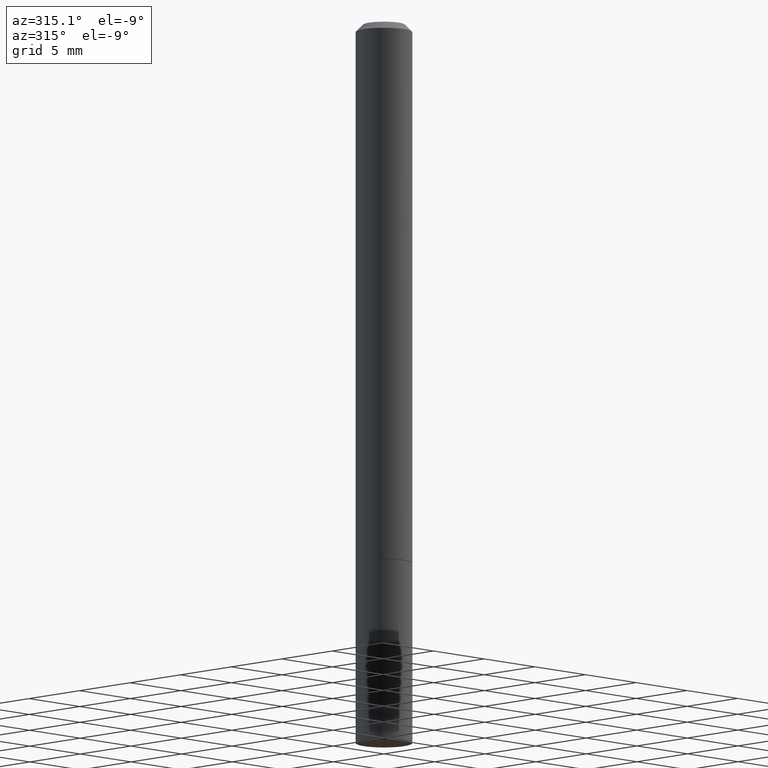
[diagram: clean part render]
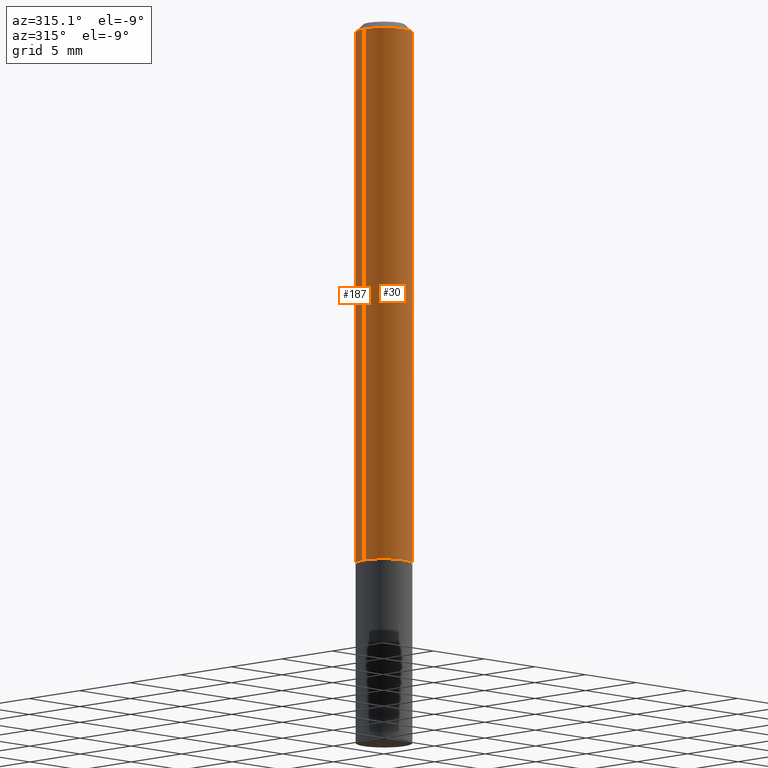
[diagram: same view with one multi-face feature highlighted, each face labeled with its STEP entity id]
A machine part, auxiliary view. The highlighted faces form ONE feature: a constant-radius fillet chain: 2 tangent blend faces with common blend radius 1.9837 mm. The faces share edges in the B-rep.
Their STEP definitions:
[1] entity #30 (Cylinder):
#11 = VERTEX_POINT ( 'NONE', #309 ) ;
#24 = VECTOR ( 'NONE', #341, 39.37007874015748143 ) ;
#30 = ADVANCED_FACE ( 'NONE', ( #303 ), #207, .T. ) ;
#45 = ORIENTED_EDGE ( 'NONE', *, *, #118, .T. ) ;
#47 = AXIS2_PLACEMENT_3D ( 'NONE', #61, #159, #275 ) ;
#57 = EDGE_CURVE ( 'NONE', #285, #11, #277, .T. ) ;
#61 = CARTESIAN_POINT ( 'NONE',  ( 3.665757740471518732E-29, -5.233730526925875170E-15, -1.498999999999999666 ) ) ;
#66 = CARTESIAN_POINT ( 'NONE',  ( 0.07809999999999991949, -5.453693851272968448E-16, 3.808294061896621499E-30 ) ) ;
#67 = CIRCLE ( 'NONE', #139, 0.07809999999999980846 ) ;
#78 = EDGE_CURVE ( 'NONE', #368, #11, #67, .T. ) ;
#83 = CARTESIAN_POINT ( 'NONE',  ( -0.07809999999999980846, 4.755397583504331521E-16, -0.02000000000000001776 ) ) ;
#96 = LINE ( 'NONE', #193, #174 ) ;
#97 = DIRECTION ( 'NONE',  ( -2.445468806185136597E-29, 3.491481338843145583E-15, 1.000000000000000000 ) ) ;
#111 = EDGE_CURVE ( 'NONE', #378, #368, #96, .T. ) ;
#117 = DIRECTION ( 'NONE',  ( -2.445468806185136597E-29, 3.491481338843145583E-15, 1.000000000000000000 ) ) ;
#118 = EDGE_CURVE ( 'NONE', #378, #285, #220, .T. ) ;
#123 = DIRECTION ( 'NONE',  ( 1.000000000000000000, -6.982962677686267499E-15, 0.000000000000000000 ) ) ;
#139 = AXIS2_PLACEMENT_3D ( 'NONE', #363, #97, #123 ) ;
#144 = EDGE_LOOP ( 'NONE', ( #261, #45, #371, #322 ) ) ;
#154 = DIRECTION ( 'NONE',  ( 1.000000000000000000, -6.982962677686266711E-15, 4.876176775795935232E-29 ) ) ;
#159 = DIRECTION ( 'NONE',  ( -2.445468806185136597E-29, 3.491481338843145583E-15, 1.000000000000000000 ) ) ;
#174 = VECTOR ( 'NONE', #213, 39.37007874015748143 ) ;
#193 = CARTESIAN_POINT ( 'NONE',  ( -0.07809999999999991949, 5.549338766286376731E-16, -3.841688305489077071E-30 ) ) ;
#207 = CYLINDRICAL_SURFACE ( 'NONE', #247, 0.07809999999999991949 ) ;
#209 = CARTESIAN_POINT ( 'NONE',  ( 0.07810000000000000275, -5.779099912053172606E-15, -1.498999999999999666 ) ) ;
#213 = DIRECTION ( 'NONE',  ( -2.445468806185136877E-29, 3.491481338843145188E-15, 1.000000000000000000 ) ) ;
#220 = CIRCLE ( 'NONE', #47, 0.07810000000000000275 ) ;
#241 = CARTESIAN_POINT ( 'NONE',  ( -0.07810000000000000275, -2.096846200222727419E-15, -1.498999999999999666 ) ) ;
#247 = AXIS2_PLACEMENT_3D ( 'NONE', #380, #117, #154 ) ;
#261 = ORIENTED_EDGE ( 'NONE', *, *, #111, .F. ) ;
#275 = DIRECTION ( 'NONE',  ( 1.000000000000000000, -6.982962677686266711E-15, 0.000000000000000000 ) ) ;
#277 = LINE ( 'NONE', #66, #24 ) ;
#285 = VERTEX_POINT ( 'NONE', #209 ) ;
#303 = FACE_OUTER_BOUND ( 'NONE', #144, .T. ) ;
#309 = CARTESIAN_POINT ( 'NONE',  ( 0.07809999999999980846, -6.056345204028183286E-16, -0.02000000000000001776 ) ) ;
#322 = ORIENTED_EDGE ( 'NONE', *, *, #78, .F. ) ;
#341 = DIRECTION ( 'NONE',  ( -2.445468806185136877E-29, 3.491481338843145188E-15, 1.000000000000000000 ) ) ;
#363 = CARTESIAN_POINT ( 'NONE',  ( 4.890937612370276662E-31, -6.982962677686296539E-17, -0.02000000000000001776 ) ) ;
#368 = VERTEX_POINT ( 'NONE', #83 ) ;
#371 = ORIENTED_EDGE ( 'NONE', *, *, #57, .T. ) ;
#378 = VERTEX_POINT ( 'NONE', #241 ) ;
#380 = CARTESIAN_POINT ( 'NONE',  ( 0.000000000000000000, 0.000000000000000000, 0.000000000000000000 ) ) ;
[2] entity #187 (Cylinder):
#5 = DIRECTION ( 'NONE',  ( 1.000000000000000000, -6.982962677686266711E-15, 0.000000000000000000 ) ) ;
#7 = CARTESIAN_POINT ( 'NONE',  ( 3.665757740471518732E-29, -5.233730526925875170E-15, -1.498999999999999666 ) ) ;
#11 = VERTEX_POINT ( 'NONE', #309 ) ;
#17 = AXIS2_PLACEMENT_3D ( 'NONE', #185, #124, #218 ) ;
#24 = VECTOR ( 'NONE', #341, 39.37007874015748143 ) ;
#29 = DIRECTION ( 'NONE',  ( -2.445468806185136597E-29, 3.491481338843145583E-15, 1.000000000000000000 ) ) ;
#57 = EDGE_CURVE ( 'NONE', #285, #11, #277, .T. ) ;
#66 = CARTESIAN_POINT ( 'NONE',  ( 0.07809999999999991949, -5.453693851272968448E-16, 3.808294061896621499E-30 ) ) ;
#77 = DIRECTION ( 'NONE',  ( 1.000000000000000000, -6.982962677686266711E-15, 4.876176775795935232E-29 ) ) ;
#83 = CARTESIAN_POINT ( 'NONE',  ( -0.07809999999999980846, 4.755397583504331521E-16, -0.02000000000000001776 ) ) ;
#92 = EDGE_CURVE ( 'NONE', #285, #378, #360, .T. ) ;
#96 = LINE ( 'NONE', #193, #174 ) ;
#111 = EDGE_CURVE ( 'NONE', #378, #368, #96, .T. ) ;
#124 = DIRECTION ( 'NONE',  ( -2.445468806185136597E-29, 3.491481338843145583E-15, 1.000000000000000000 ) ) ;
#142 = EDGE_CURVE ( 'NONE', #11, #368, #375, .T. ) ;
#174 = VECTOR ( 'NONE', #213, 39.37007874015748143 ) ;
#185 = CARTESIAN_POINT ( 'NONE',  ( 4.890937612370276662E-31, -6.982962677686296539E-17, -0.02000000000000001776 ) ) ;
#187 = ADVANCED_FACE ( 'NONE', ( #295 ), #284, .T. ) ;
#191 = AXIS2_PLACEMENT_3D ( 'NONE', #7, #29, #5 ) ;
#193 = CARTESIAN_POINT ( 'NONE',  ( -0.07809999999999991949, 5.549338766286376731E-16, -3.841688305489077071E-30 ) ) ;
#209 = CARTESIAN_POINT ( 'NONE',  ( 0.07810000000000000275, -5.779099912053172606E-15, -1.498999999999999666 ) ) ;
#213 = DIRECTION ( 'NONE',  ( -2.445468806185136877E-29, 3.491481338843145188E-15, 1.000000000000000000 ) ) ;
#218 = DIRECTION ( 'NONE',  ( 1.000000000000000000, -6.982962677686267499E-15, 0.000000000000000000 ) ) ;
#229 = CARTESIAN_POINT ( 'NONE',  ( 0.000000000000000000, 0.000000000000000000, 0.000000000000000000 ) ) ;
#232 = EDGE_LOOP ( 'NONE', ( #323, #348, #293, #330 ) ) ;
#241 = CARTESIAN_POINT ( 'NONE',  ( -0.07810000000000000275, -2.096846200222727419E-15, -1.498999999999999666 ) ) ;
#256 = DIRECTION ( 'NONE',  ( -2.445468806185136597E-29, 3.491481338843145583E-15, 1.000000000000000000 ) ) ;
#277 = LINE ( 'NONE', #66, #24 ) ;
#284 = CYLINDRICAL_SURFACE ( 'NONE', #337, 0.07809999999999991949 ) ;
#285 = VERTEX_POINT ( 'NONE', #209 ) ;
#293 = ORIENTED_EDGE ( 'NONE', *, *, #142, .F. ) ;
#295 = FACE_OUTER_BOUND ( 'NONE', #232, .T. ) ;
#309 = CARTESIAN_POINT ( 'NONE',  ( 0.07809999999999980846, -6.056345204028183286E-16, -0.02000000000000001776 ) ) ;
#323 = ORIENTED_EDGE ( 'NONE', *, *, #92, .T. ) ;
#330 = ORIENTED_EDGE ( 'NONE', *, *, #57, .F. ) ;
#337 = AXIS2_PLACEMENT_3D ( 'NONE', #229, #256, #77 ) ;
#341 = DIRECTION ( 'NONE',  ( -2.445468806185136877E-29, 3.491481338843145188E-15, 1.000000000000000000 ) ) ;
#348 = ORIENTED_EDGE ( 'NONE', *, *, #111, .T. ) ;
#360 = CIRCLE ( 'NONE', #191, 0.07810000000000000275 ) ;
#368 = VERTEX_POINT ( 'NONE', #83 ) ;
#375 = CIRCLE ( 'NONE', #17, 0.07809999999999980846 ) ;
#378 = VERTEX_POINT ( 'NONE', #241 ) ;